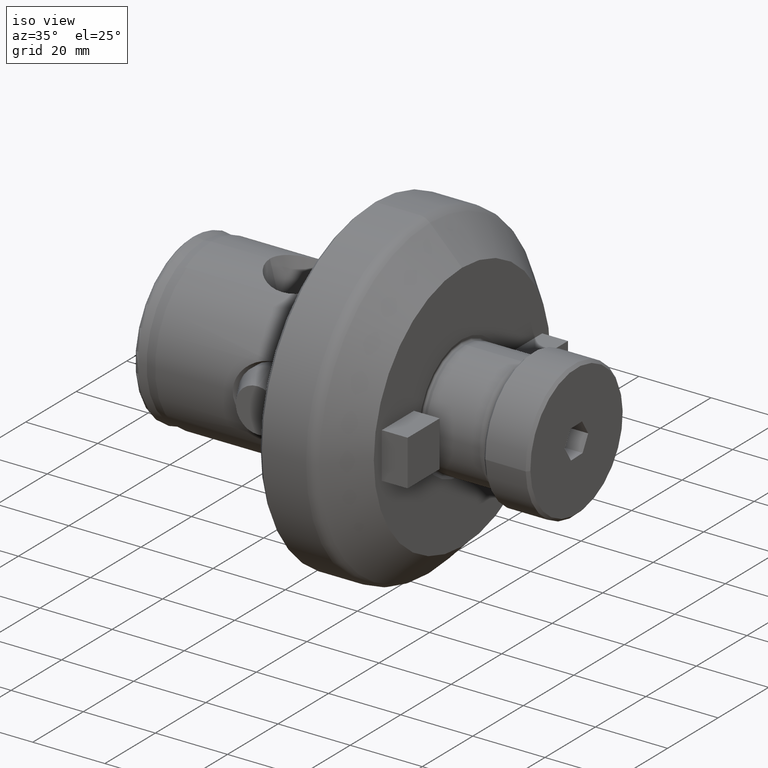
[diagram: clean part render]
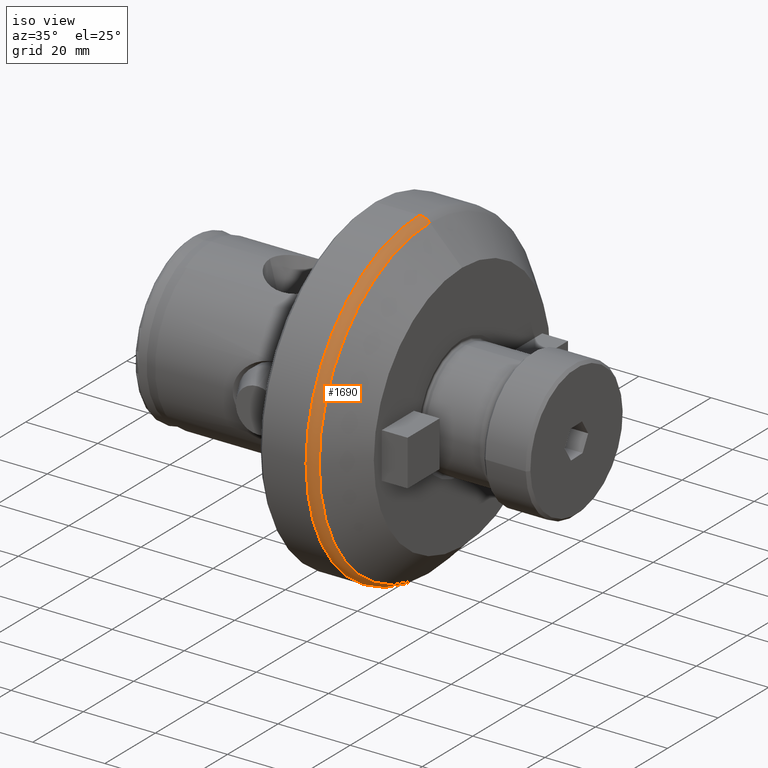
[diagram: same view with one face highlighted and labeled with its STEP entity id]
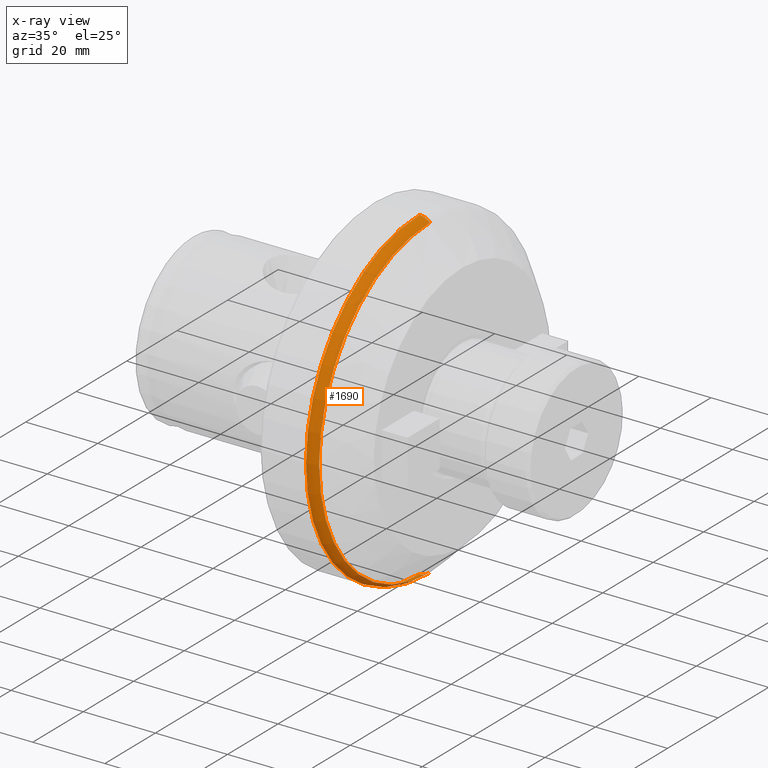
[diagram: x-ray of the same camera — body ghosted, the highlighted face saturated]
A machine part, iso view. The second image highlights one B-rep face of the part: STEP entity #1690.
The next image is the same camera in x-ray: the body ghosted, the highlighted face saturated — about 0% of this face is hidden behind the body in this view.
In plain terms, the highlighted toroidal blend (fillet) surface has major radius 41 mm and minor (blend) radius 4 mm.
Its self-contained STEP definition (entity closure, byte-faithful):
#717 = CARTESIAN_POINT ( 'NONE',  ( 63.26814575050758500, 5.510910596163089600E-015, -45.00000000000000000 ) ) ;
#720 = CARTESIAN_POINT ( 'NONE',  ( 66.09657287525378400, 0.0000000000000000000, 43.82842712474619200 ) ) ;
#725 = CARTESIAN_POINT ( 'NONE',  ( 63.26814575050758500, 0.0000000000000000000, 45.00000000000000000 ) ) ;
#836 = CARTESIAN_POINT ( 'NONE',  ( 66.09657287525378400, 5.439172447580718200E-015, -43.82842712474619200 ) ) ;
#994 = ORIENTED_EDGE ( 'NONE', *, *, #3001, .F. ) ;
#996 = ORIENTED_EDGE ( 'NONE', *, *, #3062, .T. ) ;
#997 = ORIENTED_EDGE ( 'NONE', *, *, #2984, .T. ) ;
#1000 = ORIENTED_EDGE ( 'NONE', *, *, #3065, .F. ) ;
#1690 = ADVANCED_FACE ( 'NONE', ( #4420 ), #4422, .T. ) ;
#2004 = EDGE_LOOP ( 'NONE', ( #1000, #997, #996, #994 ) ) ;
#2984 = EDGE_CURVE ( 'NONE', #8330, #8128, #4536, .T. ) ;
#3001 = EDGE_CURVE ( 'NONE', #8154, #8153, #4559, .T. ) ;
#3062 = EDGE_CURVE ( 'NONE', #8128, #8153, #5583, .T. ) ;
#3065 = EDGE_CURVE ( 'NONE', #8330, #8154, #5585, .T. ) ;
#4420 = FACE_OUTER_BOUND ( 'NONE', #2004, .T. ) ;
#4422 = TOROIDAL_SURFACE ( 'NONE', #7011, 40.99999999999999300, 4.000000000000012400 ) ;
#4536 = CIRCLE ( 'NONE', #6954, 43.82842712474619200 ) ;
#4559 = CIRCLE ( 'NONE', #6949, 45.00000000000000000 ) ;
#5028 = DIRECTION ( 'NONE',  ( -1.000000000000000000, -0.0000000000000000000, -0.0000000000000000000 ) ) ;
#5029 = CARTESIAN_POINT ( 'NONE',  ( 63.26814575050757100, 0.0000000000000000000, 0.0000000000000000000 ) ) ;
#5082 = DIRECTION ( 'NONE',  ( 0.0000000000000000000, 0.0000000000000000000, 1.000000000000000000 ) ) ;
#5583 = CIRCLE ( 'NONE', #6919, 4.000000000000010700 ) ;
#5585 = CIRCLE ( 'NONE', #6922, 4.000000000000010700 ) ;
#6231 = DIRECTION ( 'NONE',  ( -0.0000000000000000000, 1.000000000000000000, 1.224646799147353200E-016 ) ) ;
#6322 = CARTESIAN_POINT ( 'NONE',  ( 63.26814575050758500, 0.0000000000000000000, 0.0000000000000000000 ) ) ;
#6384 = DIRECTION ( 'NONE',  ( 0.0000000000000000000, 0.0000000000000000000, 1.000000000000000000 ) ) ;
#6386 = DIRECTION ( 'NONE',  ( -1.000000000000000000, -0.0000000000000000000, -0.0000000000000000000 ) ) ;
#6467 = CARTESIAN_POINT ( 'NONE',  ( 66.09657287525378400, 0.0000000000000000000, 0.0000000000000000000 ) ) ;
#6468 = DIRECTION ( 'NONE',  ( 0.0000000000000000000, 0.0000000000000000000, 1.000000000000000000 ) ) ;
#6471 = DIRECTION ( 'NONE',  ( -1.000000000000000000, -0.0000000000000000000, -0.0000000000000000000 ) ) ;
#6567 = CARTESIAN_POINT ( 'NONE',  ( 63.26814575050757100, 0.0000000000000000000, 40.99999999999999300 ) ) ;
#6568 = DIRECTION ( 'NONE',  ( 0.0000000000000000000, -1.000000000000000000, 0.0000000000000000000 ) ) ;
#6569 = DIRECTION ( 'NONE',  ( 0.0000000000000000000, 0.0000000000000000000, -1.000000000000000000 ) ) ;
#6615 = DIRECTION ( 'NONE',  ( 0.0000000000000000000, -1.224646799147353000E-016, 1.000000000000000000 ) ) ;
#6620 = CARTESIAN_POINT ( 'NONE',  ( 63.26814575050757100, 5.021051876504148200E-015, -40.99999999999999300 ) ) ;
#6919 = AXIS2_PLACEMENT_3D ( 'NONE', #6567, #6568, #6569 ) ;
#6922 = AXIS2_PLACEMENT_3D ( 'NONE', #6620, #6231, #6615 ) ;
#6949 = AXIS2_PLACEMENT_3D ( 'NONE', #6322, #6386, #6384 ) ;
#6954 = AXIS2_PLACEMENT_3D ( 'NONE', #6467, #6471, #6468 ) ;
#7011 = AXIS2_PLACEMENT_3D ( 'NONE', #5029, #5028, #5082 ) ;
#8128 = VERTEX_POINT ( 'NONE', #720 ) ;
#8153 = VERTEX_POINT ( 'NONE', #725 ) ;
#8154 = VERTEX_POINT ( 'NONE', #717 ) ;
#8330 = VERTEX_POINT ( 'NONE', #836 ) ;